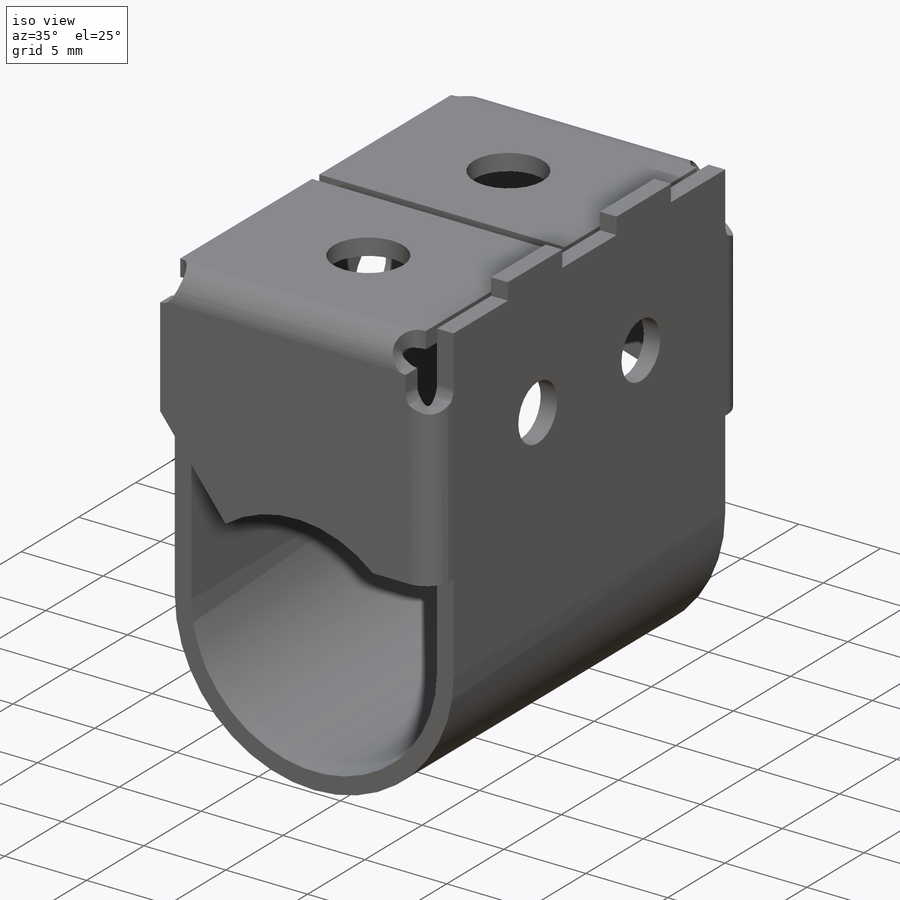
[diagram: iso view]
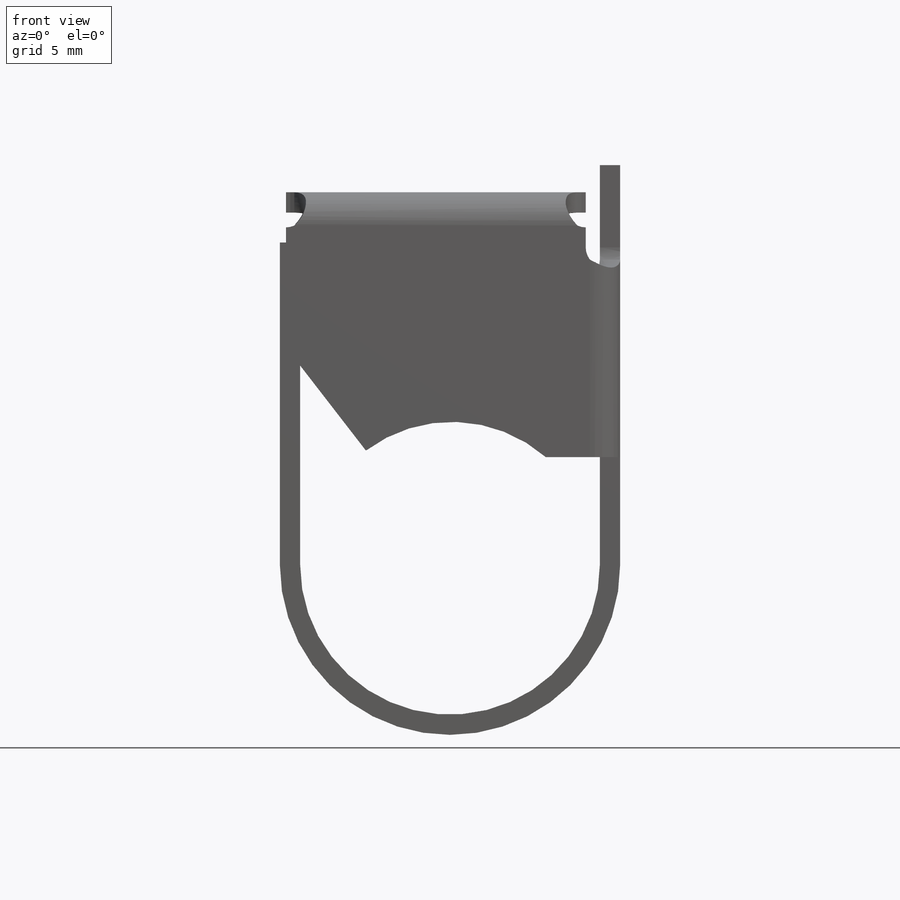
[diagram: front view]
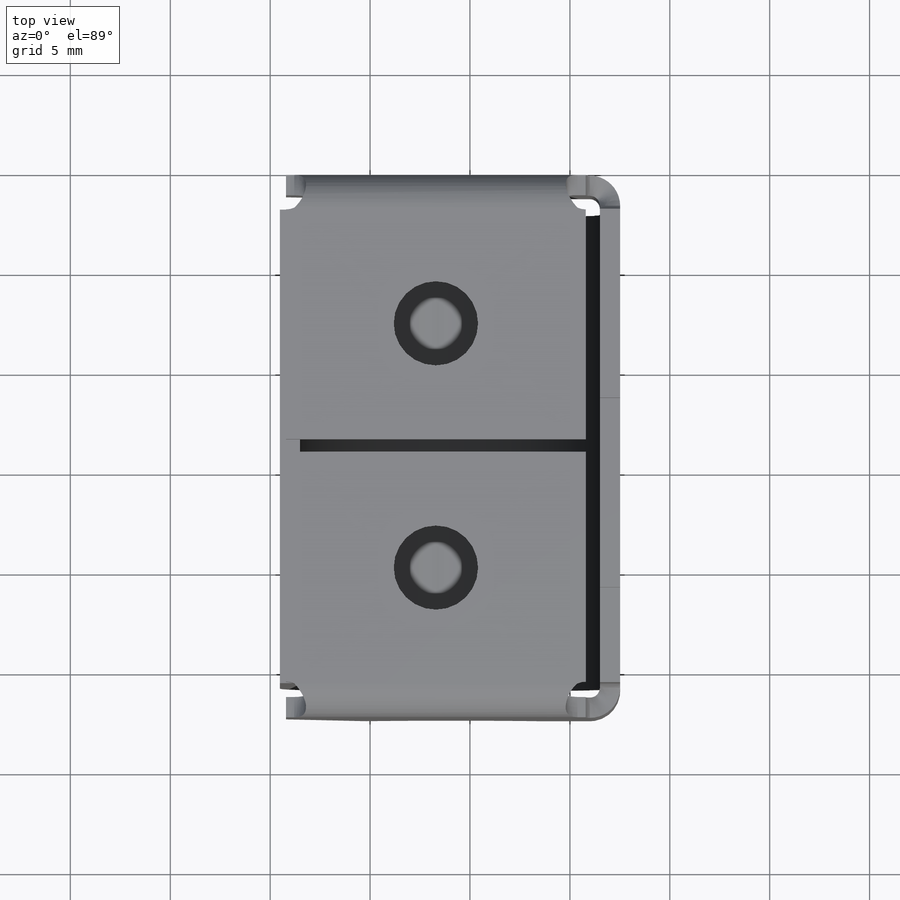
[diagram: top view]
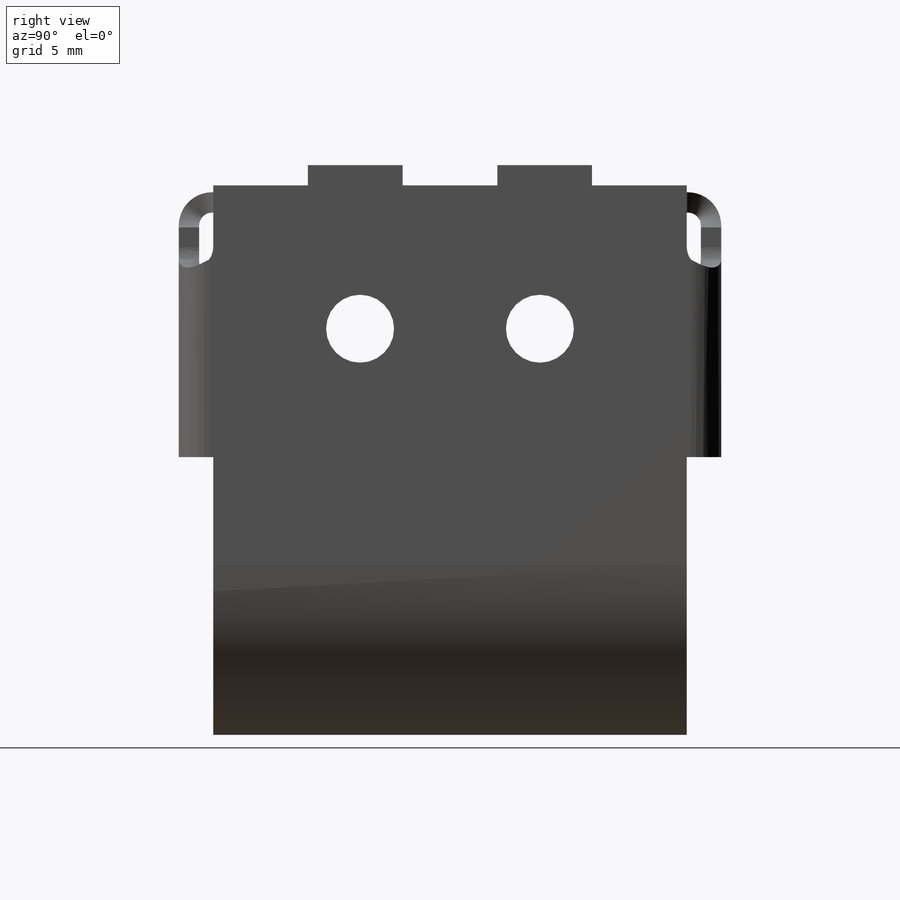
[diagram: right view]
SOLIDWORKS PART (.sldprt)
format: sldprt  version: not decoded by parser v0  size: 589,824 bytes
history: native  units: mm
features: sketch x10, sheet_metal_op x10, cut_extrude x3, fillet x2, material x1 + 2 further entries (+16 scaffold rows collapsed; 3 parser-record rows omitted)
feature tree (47):
  scaffold x16  (default folders/planes/origin — collapsed)
  material  "Plain Carbon Steel"
  sketch  "Sketch1"  dims[c1.D1=10.0mm c1.D2=1.0mm c2.D1=14.5mm c2.D2=1.0mm c3.D1=7.15mm c3.D9=17.0mm c3.D3=15.0mm c3.D2=~8.972314mm c4.D3=15.0mm c4.D4=6.0mm c4.D5=0.1mm c4.D6=1.0mm c4.D7=11.5mm c4.D8=0.25mm c4.D2=~10.474319mm c4.D9=1.5mm c5.D8=4.0mm c5.D9=13.0mm c5.D10=0.2mm c5.D11=15.0mm c6.D10=0.35mm c6.D12=1.2mm]
  sheet_metal_op  "Sheet-Metal1"  Thickness=1.016mm
  sheet_metal_op  "Sheet-Metal2"  Thickness=1.016mm
  sheet_metal_op  "Base-Flange1"
  sketch  "Sketch11"  dims[c1.D1=7.5mm c1.D4=180.0deg c1.D5=1.0 c1.D8=0.508mm c1.D9=0.508mm c2.D1=7.5mm c2.D7=20.0mm c2.D8=15.0mm c2.D9=1.0mm]
  sketch  "Sketch12"
  parser-record x3  (decoder bookkeeping rows leaked as tree rows — omitted from the tree; the rows remain in map.json)
  sheet_metal_op  "SketchBend1"
  sketch  "Sketch13"
  sheet_metal_op  "SketchBend4"
  sheet_metal_op  "SketchBend5"
  sketch  "Sketch17"  dims[c1.D1=1.5mm c1.Tab1=0.0 c2.D1=0.5mm]
  sketch  "Sketch14"  dims[c1.D1=4.22mm c1.D6=9.0mm c1.D7=9.0mm c1.D2=9.0mm c1.D3=1.0mm c1.D4=3.5mm c1.D5=17.0mm c2.D6=1.0mm]
  cut_extrude  "Cut-Extrude1"  [1 undecoded]
  sheet_metal_op  "DerivedBend1"
  sheet_metal_op  "DerivedBend2"
  sheet_metal_op  "DerivedBend3"
  sheet_metal_op  "DerivedBend4"
  sketch  "Sketch18"  dims[D1=3.4mm]
  fillet  "Fillet1"  Radius=3mm
  fillet  "Fillet2"  Radius=0.5mm
  cut_extrude  "Cut-Extrude2"  [1 undecoded]
  sketch  "Sketch19"  dims[D1=4.22mm]
  cut_extrude  "Cut-Extrude3"  [1 undecoded]
  "Flat-Pattern1"
  sketch  "Bend-Lines1"
  "Flat-Pattern2"
  sketch  "Bend-Lines2"
decode coverage: 10 of 25 modeling features carry decoded parameters; 2 rows unclassified (native names shown)
note: ~ marks probable driven/reference dimensions
note: 3 parameter values undecoded
summary: no parameter record found for 3 features
note: suppression state not decoded; provenance and decode notes live in map.json
